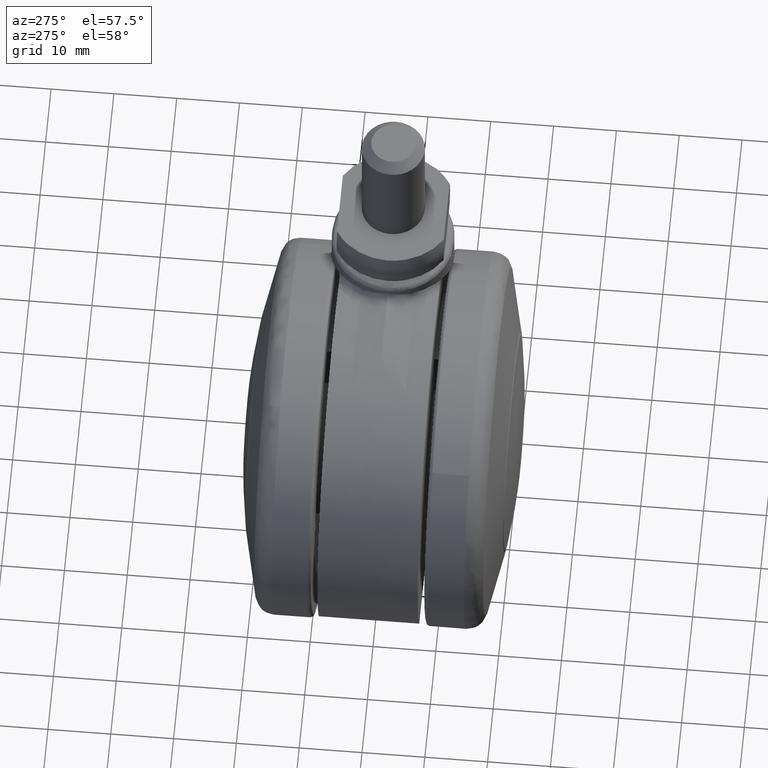
[diagram: clean part render]
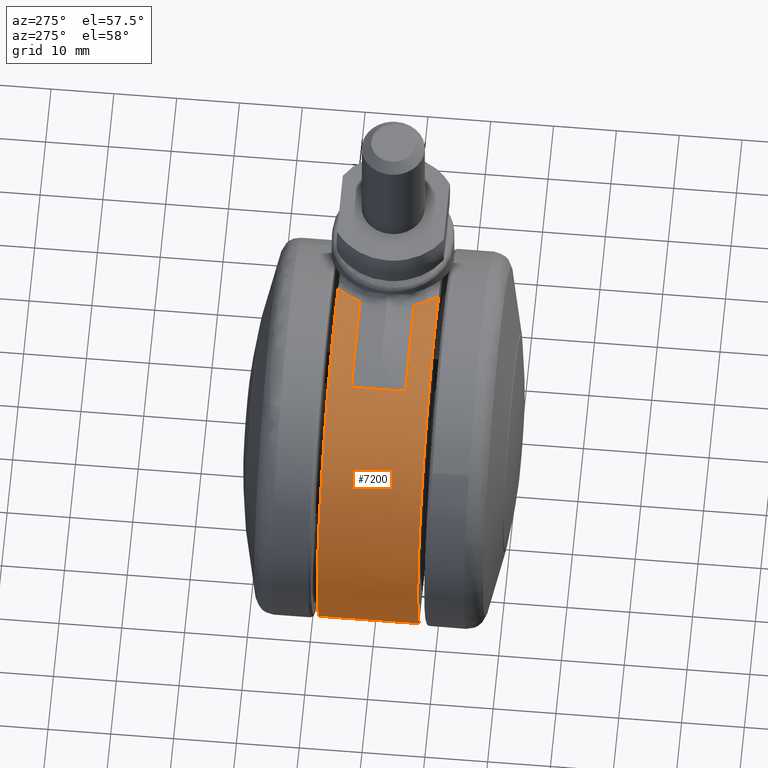
[diagram: same view with one face highlighted and labeled with its STEP entity id]
A machine part, auxiliary view. The second image highlights one B-rep face of the part: STEP entity #7200.
In plain terms, the highlighted face is a freeform B-spline surface patch.
Its self-contained STEP definition (entity closure, byte-faithful):
#4279=CARTESIAN_POINT('',(5.638386351862460,-4.317473000000000,29.465379674240150));
#4280=VERTEX_POINT('',#4279);
#4480=CARTESIAN_POINT('',(8.099200221785129,-8.0,28.886033922424101));
#4481=VERTEX_POINT('',#4480);
#4482=CARTESIAN_POINT('',(8.099200221785129,-8.0,28.886033922424101));
#4483=CARTESIAN_POINT('',(7.835848894413878,-7.740697899188318,28.959873589537320));
#4484=CARTESIAN_POINT('',(7.586824178319195,-7.468803388303440,29.025829717961098));
#4485=CARTESIAN_POINT('',(7.117070716859942,-6.900603018548786,29.144570615125179));
#4486=CARTESIAN_POINT('',(6.896342078744669,-6.604296163514496,29.197350615519920));
#4487=CARTESIAN_POINT('',(6.586787922703630,-6.141573766938197,29.268164088638908));
#4488=CARTESIAN_POINT('',(6.487199041792786,-5.984283867865982,29.290371939919510));
#4489=CARTESIAN_POINT('',(6.295342165589043,-5.663546441122172,29.332205965539281));
#4490=CARTESIAN_POINT('',(6.203158464943255,-5.500199511095742,29.351812115777449));
#4491=CARTESIAN_POINT('',(5.939654132778627,-5.004474973917542,29.406677923005081));
#4492=CARTESIAN_POINT('',(5.780652415105851,-4.665296314509707,29.438156165220750));
#4493=CARTESIAN_POINT('',(5.638386351862460,-4.317473000000000,29.465379674240150));
#4494=B_SPLINE_CURVE_WITH_KNOTS('',3,(#4482,#4483,#4484,#4485,#4486,#4487,#4488,#4489,#4490,#4491,#4492,#4493),.UNSPECIFIED.,.F.,.U.,(4,2,2,2,2,4),(0.0,0.250000000000000,0.500000000000000,0.625000000000000,0.750000000000000,1.0),.UNSPECIFIED.);
#4495=EDGE_CURVE('',#4481,#4280,#4494,.T.);
#4553=CARTESIAN_POINT('',(5.638386351862460,4.317473000000000,29.465379674240150));
#4554=VERTEX_POINT('',#4553);
#4664=CARTESIAN_POINT('',(8.099200221784960,7.999999999999830,28.886033922424151));
#4665=VERTEX_POINT('',#4664);
#4699=CARTESIAN_POINT('',(5.638386351862460,4.317473000000000,29.465379674240150));
#4700=CARTESIAN_POINT('',(5.780652415105862,4.665296314509685,29.438156165220750));
#4701=CARTESIAN_POINT('',(5.939654132778608,5.004474973917505,29.406677923005070));
#4702=CARTESIAN_POINT('',(6.203158464943217,5.500199511095677,29.351812115777449));
#4703=CARTESIAN_POINT('',(6.295342165589000,5.663546441122098,29.332205965539291));
#4704=CARTESIAN_POINT('',(6.487199041792731,5.984283867865895,29.290371939919531));
#4705=CARTESIAN_POINT('',(6.586787922703566,6.141573766938100,29.268164088638919));
#4706=CARTESIAN_POINT('',(6.896342078744587,6.604296163514379,29.197350615519930));
#4707=CARTESIAN_POINT('',(7.117070716859842,6.900603018548657,29.144570615125200));
#4708=CARTESIAN_POINT('',(7.586824178319063,7.468803388303291,29.025829717961152));
#4709=CARTESIAN_POINT('',(7.835848894413728,7.740697899188157,28.959873589537359));
#4710=CARTESIAN_POINT('',(8.099200221784960,7.999999999999830,28.886033922424151));
#4711=B_SPLINE_CURVE_WITH_KNOTS('',3,(#4699,#4700,#4701,#4702,#4703,#4704,#4705,#4706,#4707,#4708,#4709,#4710),.UNSPECIFIED.,.F.,.U.,(4,2,2,2,2,4),(0.0,0.250000000000000,0.375000000000000,0.500000000000000,0.750000000000000,1.0),.UNSPECIFIED.);
#4712=EDGE_CURVE('',#4554,#4665,#4711,.T.);
#5224=CARTESIAN_POINT('',(-9.841875000001100,-4.317473000000000,28.339680599547101));
#5225=VERTEX_POINT('',#5224);
#5630=CARTESIAN_POINT('',(-9.841875000001140,4.317473000000000,28.339680599547201));
#5631=VERTEX_POINT('',#5630);
#5664=CARTESIAN_POINT('',(-9.841875000001100,-4.317473000000000,28.339680599547101));
#5665=CARTESIAN_POINT('',(-9.841875000001140,4.317473000000000,28.339680599547201));
#5666=QUASI_UNIFORM_CURVE('',1,(#5664,#5665),.UNSPECIFIED.,.F.,.U.);
#5667=EDGE_CURVE('',#5225,#5631,#5666,.T.);
#6255=CARTESIAN_POINT('',(-27.271780286589308,7.999999999999789,-12.500000000000000));
#6256=VERTEX_POINT('',#6255);
#6271=CARTESIAN_POINT('',(-27.271780286589308,-8.0,-12.500000000000000));
#6272=VERTEX_POINT('',#6271);
#6278=CARTESIAN_POINT('',(-27.271780286589308,7.999999999999789,-12.500000000000000));
#6279=CARTESIAN_POINT('',(-27.271780286589308,-8.0,-12.500000000000000));
#6280=QUASI_UNIFORM_CURVE('',1,(#6278,#6279),.UNSPECIFIED.,.F.,.U.);
#6281=EDGE_CURVE('',#6256,#6272,#6280,.T.);
#6503=CARTESIAN_POINT('',(-9.841875000001100,-4.317473000000000,28.339680599547101));
#6504=CARTESIAN_POINT('',(-2.252476074864699,-4.317472999999999,30.975345997537943));
#6505=CARTESIAN_POINT('',(5.638386351862460,-4.317473000000000,29.465379674240150));
#6513=(BOUNDED_CURVE()B_SPLINE_CURVE(2,(#6503,#6504,#6505),.UNSPECIFIED.,.F.,.U.)CURVE()GEOMETRIC_REPRESENTATION_ITEM()QUASI_UNIFORM_CURVE()RATIONAL_B_SPLINE_CURVE((1.0,0.965961569006534,1.0))REPRESENTATION_ITEM(''));
#6514=EDGE_CURVE('',#5225,#4280,#6513,.T.);
#6541=CARTESIAN_POINT('',(-9.841875000001140,4.317473000000000,28.339680599547211));
#6542=CARTESIAN_POINT('',(-2.252476074864699,4.317472999999999,30.975345997537943));
#6543=CARTESIAN_POINT('',(5.638386351862460,4.317473000000000,29.465379674240150));
#6551=(BOUNDED_CURVE()B_SPLINE_CURVE(2,(#6541,#6542,#6543),.UNSPECIFIED.,.F.,.U.)CURVE()GEOMETRIC_REPRESENTATION_ITEM()QUASI_UNIFORM_CURVE()RATIONAL_B_SPLINE_CURVE((1.0,0.965961569006534,1.0))REPRESENTATION_ITEM(''));
#6552=EDGE_CURVE('',#5631,#4554,#6551,.T.);
#7144=CARTESIAN_POINT('',(-26.768758520688252,8.399999999999828,-13.543764885033969));
#7145=CARTESIAN_POINT('',(-26.768758520688252,-8.409999999999997,-13.543764885033969));
#7146=CARTESIAN_POINT('',(-35.990379796404874,8.399999999999828,4.682434048149925));
#7147=CARTESIAN_POINT('',(-35.990379796404874,-8.409999999999997,4.682434048149925));
#7148=CARTESIAN_POINT('',(-22.412139621372368,8.399999999999828,19.942316755886459));
#7149=CARTESIAN_POINT('',(-22.412139621372368,-8.409999999999997,19.942316755886459));
#7150=CARTESIAN_POINT('',(-8.833899446339864,8.399999999999828,35.202199463622989));
#7151=CARTESIAN_POINT('',(-8.833899446339864,-8.409999999999997,35.202199463622989));
#7152=CARTESIAN_POINT('',(10.340605191189860,8.399999999999828,28.161531994547740));
#7153=CARTESIAN_POINT('',(10.340605191189860,-8.409999999999997,28.161531994547740));
#7161=(BOUNDED_SURFACE()B_SPLINE_SURFACE(1,2,((#7144,#7146,#7148,#7150,#7152),(#7145,#7147,#7149,#7151,#7153)),.UNSPECIFIED.,.F.,.F.,.U.)B_SPLINE_SURFACE_WITH_KNOTS((2,2),(3,2,3),(0.0,16.809999999999832),(0.0,36.974143403399509,73.948286806799018),.UNSPECIFIED.)GEOMETRIC_REPRESENTATION_ITEM()RATIONAL_B_SPLINE_SURFACE(((1.0,0.826589749127189,1.0,0.826589749127189,1.0),(1.0,0.826589749127189,1.0,0.826589749127189,1.0)))REPRESENTATION_ITEM('')SURFACE());
#7162=CARTESIAN_POINT('',(8.099200221785134,-8.0,28.886033922424090));
#7163=CARTESIAN_POINT('',(-10.354127796677220,-8.0,34.060063655311062));
#7164=CARTESIAN_POINT('',(-22.805655165821051,-8.0,19.491077252364970));
#7165=CARTESIAN_POINT('',(-35.257182534964890,-8.0,4.922090849418860));
#7166=CARTESIAN_POINT('',(-27.271780286589291,-8.0,-12.499999999999989));
#7174=(BOUNDED_CURVE()B_SPLINE_CURVE(2,(#7162,#7163,#7164,#7165,#7166),.UNSPECIFIED.,.F.,.U.)B_SPLINE_CURVE_WITH_KNOTS((3,2,3),(0.0,0.500000000000000,1.0),.UNSPECIFIED.)CURVE()GEOMETRIC_REPRESENTATION_ITEM()RATIONAL_B_SPLINE_CURVE((1.0,0.842717941253652,1.0,0.842717941253652,1.0))REPRESENTATION_ITEM(''));
#7175=EDGE_CURVE('',#4481,#6272,#7174,.T.);
#7176=ORIENTED_EDGE('',*,*,#7175,.F.);
#7177=ORIENTED_EDGE('',*,*,#4495,.T.);
#7178=ORIENTED_EDGE('',*,*,#6514,.F.);
#7179=ORIENTED_EDGE('',*,*,#5667,.T.);
#7180=ORIENTED_EDGE('',*,*,#6552,.T.);
#7181=ORIENTED_EDGE('',*,*,#4712,.T.);
#7182=CARTESIAN_POINT('',(8.099200221784956,7.999999999999830,28.886033922424151));
#7183=CARTESIAN_POINT('',(-10.354127796677361,7.999999999999830,34.060063655310991));
#7184=CARTESIAN_POINT('',(-22.805655165821111,7.999999999999830,19.491077252364910));
#7185=CARTESIAN_POINT('',(-35.257182534964869,7.999999999999830,4.922090849418811));
#7186=CARTESIAN_POINT('',(-27.271780286589291,7.999999999999830,-12.499999999999989));
#7194=(BOUNDED_CURVE()B_SPLINE_CURVE(2,(#7182,#7183,#7184,#7185,#7186),.UNSPECIFIED.,.F.,.U.)B_SPLINE_CURVE_WITH_KNOTS((3,2,3),(0.0,0.500000000000000,1.0),.UNSPECIFIED.)CURVE()GEOMETRIC_REPRESENTATION_ITEM()RATIONAL_B_SPLINE_CURVE((1.0,0.842717941253654,1.0,0.842717941253654,1.0))REPRESENTATION_ITEM(''));
#7195=EDGE_CURVE('',#4665,#6256,#7194,.T.);
#7196=ORIENTED_EDGE('',*,*,#7195,.T.);
#7197=ORIENTED_EDGE('',*,*,#6281,.T.);
#7198=EDGE_LOOP('',(#7176,#7177,#7178,#7179,#7180,#7181,#7196,#7197));
#7199=FACE_OUTER_BOUND('',#7198,.T.);
#7200=ADVANCED_FACE('',(#7199),#7161,.T.);